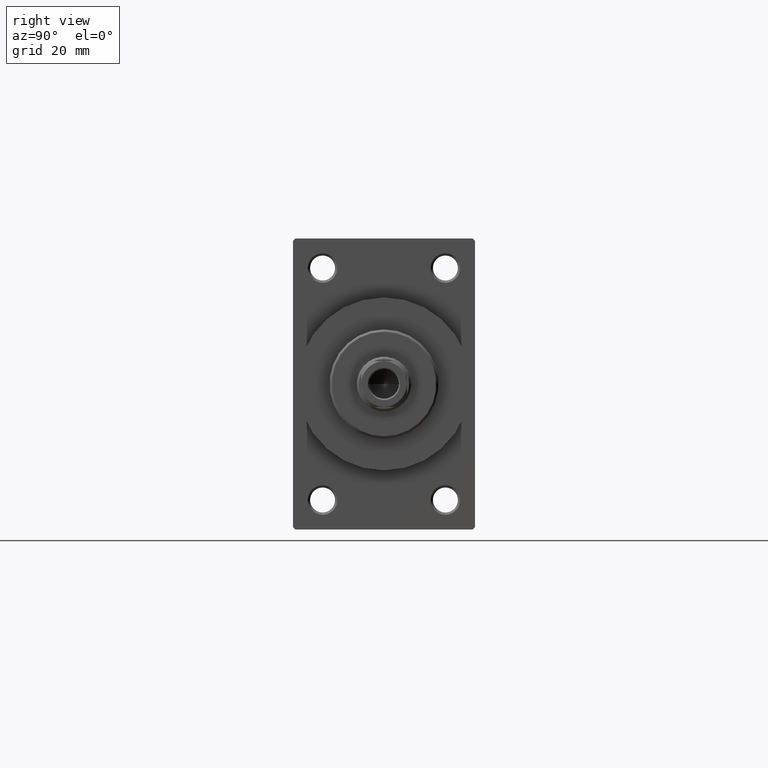
[diagram: clean part render]
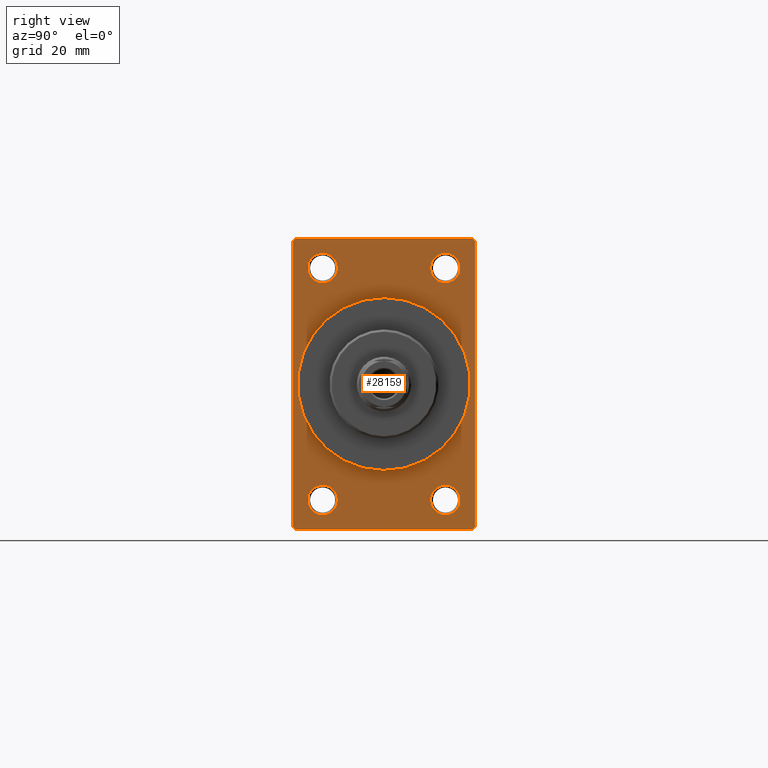
[diagram: same view with one face highlighted and labeled with its STEP entity id]
A machine part, right view. The second image highlights one B-rep face of the part: STEP entity #28159.
In plain terms, the highlighted planar face has unit normal (-1, 0, 0).
Its self-contained STEP definition (entity closure, byte-faithful):
#258 = AXIS2_PLACEMENT_3D ( 'NONE', #43121, #4071, #29058 ) ;
#797 = VECTOR ( 'NONE', #36670, 1000.000000000000000 ) ;
#865 = LINE ( 'NONE', #44678, #2356 ) ;
#932 = VECTOR ( 'NONE', #1781, 1000.000000000000000 ) ;
#965 = CARTESIAN_POINT ( 'NONE',  ( 109.0000000000000142, -19.49999999999998579, 31.99999999999999289 ) ) ;
#1007 = CIRCLE ( 'NONE', #258, 3.250000000000002665 ) ;
#1215 = VERTEX_POINT ( 'NONE', #41802 ) ;
#1407 = EDGE_CURVE ( 'NONE', #43230, #31814, #12410, .T. ) ;
#1618 = CARTESIAN_POINT ( 'NONE',  ( 109.0000000000000142, 0.000000000000000000, 0.000000000000000000 ) ) ;
#1650 = DIRECTION ( 'NONE',  ( -1.000000000000000000, -0.000000000000000000, -0.000000000000000000 ) ) ;
#1781 = DIRECTION ( 'NONE',  ( 0.000000000000000000, -1.000000000000000000, 0.000000000000000000 ) ) ;
#2067 = ORIENTED_EDGE ( 'NONE', *, *, #25658, .T. ) ;
#2356 = VECTOR ( 'NONE', #3747, 1000.000000000000000 ) ;
#2498 = DIRECTION ( 'NONE',  ( 0.000000000000000000, 0.000000000000000000, 1.000000000000000000 ) ) ;
#2551 = FACE_BOUND ( 'NONE', #45333, .T. ) ;
#2731 = CARTESIAN_POINT ( 'NONE',  ( 109.0000000000000142, 2.326828918379970970E-15, -19.00000000000000000 ) ) ;
#2789 = FACE_BOUND ( 'NONE', #25718, .T. ) ;
#3309 = ORIENTED_EDGE ( 'NONE', *, *, #42561, .T. ) ;
#3577 = VERTEX_POINT ( 'NONE', #965 ) ;
#3670 = EDGE_LOOP ( 'NONE', ( #22754, #31480 ) ) ;
#3747 = DIRECTION ( 'NONE',  ( 0.000000000000000000, -1.000000000000000000, -1.734723475976807094E-16 ) ) ;
#4071 = DIRECTION ( 'NONE',  ( -1.000000000000000000, -0.000000000000000000, -0.000000000000000000 ) ) ;
#4463 = CARTESIAN_POINT ( 'NONE',  ( 109.0000000000000142, 13.49999999999999822, -25.50000000000000000 ) ) ;
#4606 = CIRCLE ( 'NONE', #35766, 19.00000000000000000 ) ;
#4645 = EDGE_CURVE ( 'NONE', #14798, #29362, #1007, .T. ) ;
#4802 = VERTEX_POINT ( 'NONE', #42122 ) ;
#4991 = CARTESIAN_POINT ( 'NONE',  ( 109.0000000000000142, -13.50000000000000533, -25.49999999999999645 ) ) ;
#5524 = LINE ( 'NONE', #16232, #13686 ) ;
#5813 = DIRECTION ( 'NONE',  ( 0.000000000000000000, 0.000000000000000000, 1.000000000000000000 ) ) ;
#5872 = ORIENTED_EDGE ( 'NONE', *, *, #33255, .T. ) ;
#5947 = CARTESIAN_POINT ( 'NONE',  ( 109.0000000000000142, -13.50000000000000178, 28.75000000000000355 ) ) ;
#6063 = CARTESIAN_POINT ( 'NONE',  ( 109.0000000000000142, 13.49999999999999822, 25.50000000000000355 ) ) ;
#6375 = CARTESIAN_POINT ( 'NONE',  ( 109.0000000000000142, 0.000000000000000000, 19.00000000000000000 ) ) ;
#6588 = FACE_BOUND ( 'NONE', #16532, .T. ) ;
#6835 = AXIS2_PLACEMENT_3D ( 'NONE', #17305, #32292, #38736 ) ;
#6840 = VERTEX_POINT ( 'NONE', #39706 ) ;
#7007 = CARTESIAN_POINT ( 'NONE',  ( 109.0000000000000142, 19.49999999999998579, 32.00000000000000000 ) ) ;
#7472 = CARTESIAN_POINT ( 'NONE',  ( 109.0000000000000142, 0.000000000000000000, 0.000000000000000000 ) ) ;
#7721 = CARTESIAN_POINT ( 'NONE',  ( 109.0000000000000142, 13.49999999999999822, 22.25000000000004263 ) ) ;
#8200 = CARTESIAN_POINT ( 'NONE',  ( 109.0000000000000142, 19.49999999999998579, 32.00000000000000000 ) ) ;
#8448 = CARTESIAN_POINT ( 'NONE',  ( 109.0000000000000142, 20.00000000000000000, -32.00000000000000000 ) ) ;
#8827 = CIRCLE ( 'NONE', #30869, 3.250000000000002665 ) ;
#9023 = DIRECTION ( 'NONE',  ( 0.000000000000000000, 0.000000000000000000, 1.000000000000000000 ) ) ;
#9216 = CARTESIAN_POINT ( 'NONE',  ( 109.0000000000000142, -20.00000000000000000, 31.99999999999999289 ) ) ;
#9539 = CARTESIAN_POINT ( 'NONE',  ( 109.0000000000000142, 13.49999999999999822, -28.75000000000000000 ) ) ;
#9599 = AXIS2_PLACEMENT_3D ( 'NONE', #4463, #33980, #40636 ) ;
#9684 = DIRECTION ( 'NONE',  ( 0.000000000000000000, 0.000000000000000000, -1.000000000000000000 ) ) ;
#9686 = FACE_BOUND ( 'NONE', #15568, .T. ) ;
#10519 = DIRECTION ( 'NONE',  ( 0.000000000000000000, 0.000000000000000000, 1.000000000000000000 ) ) ;
#10718 = CARTESIAN_POINT ( 'NONE',  ( 109.0000000000000142, 20.00000000000000000, -31.49999999999998579 ) ) ;
#10835 = ORIENTED_EDGE ( 'NONE', *, *, #29262, .T. ) ;
#12084 = DIRECTION ( 'NONE',  ( 1.000000000000000000, 0.000000000000000000, 0.000000000000000000 ) ) ;
#12245 = ORIENTED_EDGE ( 'NONE', *, *, #13261, .T. ) ;
#12410 = CIRCLE ( 'NONE', #42048, 3.249999999999961364 ) ;
#13261 = EDGE_CURVE ( 'NONE', #16991, #4802, #34328, .T. ) ;
#13686 = VECTOR ( 'NONE', #30757, 1000.000000000000114 ) ;
#14498 = EDGE_CURVE ( 'NONE', #6840, #1215, #24798, .T. ) ;
#14798 = VERTEX_POINT ( 'NONE', #18920 ) ;
#14880 = VERTEX_POINT ( 'NONE', #8200 ) ;
#15198 = DIRECTION ( 'NONE',  ( -0.000000000000000000, -0.7071067811865474617, -0.7071067811865474617 ) ) ;
#15205 = ORIENTED_EDGE ( 'NONE', *, *, #17951, .T. ) ;
#15568 = EDGE_LOOP ( 'NONE', ( #35583, #17913 ) ) ;
#15593 = EDGE_CURVE ( 'NONE', #1215, #6840, #30865, .T. ) ;
#15691 = VERTEX_POINT ( 'NONE', #6375 ) ;
#15868 = EDGE_CURVE ( 'NONE', #38823, #23902, #42287, .T. ) ;
#16232 = CARTESIAN_POINT ( 'NONE',  ( 109.0000000000000142, 20.00000000000000000, -31.49999999999998579 ) ) ;
#16532 = EDGE_LOOP ( 'NONE', ( #15205, #17825 ) ) ;
#16991 = VERTEX_POINT ( 'NONE', #38940 ) ;
#17061 = FACE_BOUND ( 'NONE', #3670, .T. ) ;
#17305 = CARTESIAN_POINT ( 'NONE',  ( 109.0000000000000142, 0.000000000000000000, 0.000000000000000000 ) ) ;
#17487 = DIRECTION ( 'NONE',  ( -1.000000000000000000, -0.000000000000000000, -0.000000000000000000 ) ) ;
#17825 = ORIENTED_EDGE ( 'NONE', *, *, #1407, .T. ) ;
#17910 = ORIENTED_EDGE ( 'NONE', *, *, #35933, .F. ) ;
#17913 = ORIENTED_EDGE ( 'NONE', *, *, #44654, .T. ) ;
#17951 = EDGE_CURVE ( 'NONE', #31814, #43230, #23375, .T. ) ;
#18011 = VERTEX_POINT ( 'NONE', #2731 ) ;
#18223 = ORIENTED_EDGE ( 'NONE', *, *, #15593, .T. ) ;
#18863 = DIRECTION ( 'NONE',  ( 0.000000000000000000, 0.7071067811865426878, -0.7071067811865524577 ) ) ;
#18920 = CARTESIAN_POINT ( 'NONE',  ( 109.0000000000000142, -13.50000000000000178, 22.25000000000000000 ) ) ;
#19639 = VERTEX_POINT ( 'NONE', #32122 ) ;
#20542 = ORIENTED_EDGE ( 'NONE', *, *, #30726, .T. ) ;
#20567 = DIRECTION ( 'NONE',  ( -1.000000000000000000, -0.000000000000000000, -0.000000000000000000 ) ) ;
#21278 = VERTEX_POINT ( 'NONE', #27151 ) ;
#21537 = DIRECTION ( 'NONE',  ( 0.000000000000000000, -0.7071067811865474617, 0.7071067811865474617 ) ) ;
#21743 = AXIS2_PLACEMENT_3D ( 'NONE', #44992, #40708, #33558 ) ;
#21933 = CARTESIAN_POINT ( 'NONE',  ( 109.0000000000000142, 20.00000000000000000, 32.00000000000000000 ) ) ;
#21961 = CARTESIAN_POINT ( 'NONE',  ( 109.0000000000000142, -13.50000000000000178, 25.50000000000000355 ) ) ;
#22036 = CARTESIAN_POINT ( 'NONE',  ( 109.0000000000000142, 13.49999999999999822, -22.24999999999999645 ) ) ;
#22261 = VECTOR ( 'NONE', #9684, 1000.000000000000000 ) ;
#22360 = LINE ( 'NONE', #33532, #45658 ) ;
#22621 = AXIS2_PLACEMENT_3D ( 'NONE', #6063, #17487, #2498 ) ;
#22754 = ORIENTED_EDGE ( 'NONE', *, *, #28479, .F. ) ;
#23375 = CIRCLE ( 'NONE', #22621, 3.249999999999961364 ) ;
#23442 = CARTESIAN_POINT ( 'NONE',  ( 109.0000000000000142, 13.49999999999999822, 25.50000000000000355 ) ) ;
#23902 = VERTEX_POINT ( 'NONE', #9539 ) ;
#23958 = VECTOR ( 'NONE', #21537, 1000.000000000000114 ) ;
#24798 = CIRCLE ( 'NONE', #21743, 3.250000000000002665 ) ;
#25340 = DIRECTION ( 'NONE',  ( 0.000000000000000000, 0.000000000000000000, -1.000000000000000000 ) ) ;
#25457 = ORIENTED_EDGE ( 'NONE', *, *, #15868, .T. ) ;
#25658 = EDGE_CURVE ( 'NONE', #19639, #36090, #5524, .T. ) ;
#25709 = ORIENTED_EDGE ( 'NONE', *, *, #25862, .F. ) ;
#25718 = EDGE_LOOP ( 'NONE', ( #38680, #25457 ) ) ;
#25862 = EDGE_CURVE ( 'NONE', #29168, #36090, #36907, .T. ) ;
#27151 = CARTESIAN_POINT ( 'NONE',  ( 109.0000000000000142, -20.00000000000000000, 31.49999999999997868 ) ) ;
#27856 = AXIS2_PLACEMENT_3D ( 'NONE', #4991, #1650, #9023 ) ;
#28159 = ADVANCED_FACE ( 'NONE', ( #9686, #2551, #2789, #6588, #17061, #46119 ), #45880, .F. ) ;
#28219 = DIRECTION ( 'NONE',  ( 0.000000000000000000, 0.000000000000000000, 1.000000000000000000 ) ) ;
#28479 = EDGE_CURVE ( 'NONE', #15691, #18011, #4606, .T. ) ;
#29058 = DIRECTION ( 'NONE',  ( 0.000000000000000000, 0.000000000000000000, 1.000000000000000000 ) ) ;
#29131 = DIRECTION ( 'NONE',  ( 1.000000000000000000, 0.000000000000000000, 0.000000000000000000 ) ) ;
#29168 = VERTEX_POINT ( 'NONE', #32116 ) ;
#29262 = EDGE_CURVE ( 'NONE', #3577, #21278, #22360, .T. ) ;
#29362 = VERTEX_POINT ( 'NONE', #5947 ) ;
#29807 = CARTESIAN_POINT ( 'NONE',  ( 109.0000000000000142, -19.49999999999998579, -32.00000000000000000 ) ) ;
#30613 = AXIS2_PLACEMENT_3D ( 'NONE', #1618, #12084, #44242 ) ;
#30726 = EDGE_CURVE ( 'NONE', #14880, #3577, #865, .T. ) ;
#30757 = DIRECTION ( 'NONE',  ( -0.000000000000000000, 0.7071067811865474617, 0.7071067811865474617 ) ) ;
#30865 = CIRCLE ( 'NONE', #27856, 3.250000000000002665 ) ;
#30869 = AXIS2_PLACEMENT_3D ( 'NONE', #21961, #43143, #10519 ) ;
#31480 = ORIENTED_EDGE ( 'NONE', *, *, #33144, .F. ) ;
#31814 = VERTEX_POINT ( 'NONE', #7721 ) ;
#32116 = CARTESIAN_POINT ( 'NONE',  ( 109.0000000000000142, 20.00000000000000000, 31.49999999999998579 ) ) ;
#32122 = CARTESIAN_POINT ( 'NONE',  ( 109.0000000000000142, 19.49999999999998579, -32.00000000000000000 ) ) ;
#32247 = LINE ( 'NONE', #7007, #23958 ) ;
#32292 = DIRECTION ( 'NONE',  ( -1.000000000000000000, 0.000000000000000000, -0.000000000000000000 ) ) ;
#33144 = EDGE_CURVE ( 'NONE', #18011, #15691, #38966, .T. ) ;
#33255 = EDGE_CURVE ( 'NONE', #21278, #16991, #45649, .T. ) ;
#33532 = CARTESIAN_POINT ( 'NONE',  ( 109.0000000000000142, -20.00000000000000000, 31.49999999999997868 ) ) ;
#33558 = DIRECTION ( 'NONE',  ( 0.000000000000000000, 0.000000000000000000, 1.000000000000000000 ) ) ;
#33725 = ORIENTED_EDGE ( 'NONE', *, *, #14498, .T. ) ;
#33980 = DIRECTION ( 'NONE',  ( -1.000000000000000000, -0.000000000000000000, -0.000000000000000000 ) ) ;
#34328 = LINE ( 'NONE', #29807, #45295 ) ;
#34506 = DIRECTION ( 'NONE',  ( -1.000000000000000000, -0.000000000000000000, -0.000000000000000000 ) ) ;
#35583 = ORIENTED_EDGE ( 'NONE', *, *, #4645, .T. ) ;
#35606 = CARTESIAN_POINT ( 'NONE',  ( 109.0000000000000142, 13.49999999999999822, -25.50000000000000000 ) ) ;
#35766 = AXIS2_PLACEMENT_3D ( 'NONE', #7472, #29131, #25340 ) ;
#35933 = EDGE_CURVE ( 'NONE', #19639, #4802, #41299, .T. ) ;
#36090 = VERTEX_POINT ( 'NONE', #10718 ) ;
#36670 = DIRECTION ( 'NONE',  ( 0.000000000000000000, 0.000000000000000000, -1.000000000000000000 ) ) ;
#36907 = LINE ( 'NONE', #21933, #797 ) ;
#37292 = CARTESIAN_POINT ( 'NONE',  ( 109.0000000000000142, 13.49999999999999822, 28.74999999999996803 ) ) ;
#38680 = ORIENTED_EDGE ( 'NONE', *, *, #38729, .T. ) ;
#38729 = EDGE_CURVE ( 'NONE', #23902, #38823, #46602, .T. ) ;
#38736 = DIRECTION ( 'NONE',  ( -0.000000000000000000, 0.000000000000000000, 1.000000000000000000 ) ) ;
#38823 = VERTEX_POINT ( 'NONE', #22036 ) ;
#38940 = CARTESIAN_POINT ( 'NONE',  ( 109.0000000000000142, -20.00000000000000000, -31.49999999999997868 ) ) ;
#38966 = CIRCLE ( 'NONE', #30613, 19.00000000000000000 ) ;
#39706 = CARTESIAN_POINT ( 'NONE',  ( 109.0000000000000142, -13.50000000000000533, -22.24999999999999289 ) ) ;
#40636 = DIRECTION ( 'NONE',  ( 0.000000000000000000, 0.000000000000000000, 1.000000000000000000 ) ) ;
#40708 = DIRECTION ( 'NONE',  ( -1.000000000000000000, -0.000000000000000000, -0.000000000000000000 ) ) ;
#41048 = EDGE_LOOP ( 'NONE', ( #5872, #12245, #17910, #2067, #25709, #3309, #20542, #10835 ) ) ;
#41299 = LINE ( 'NONE', #8448, #932 ) ;
#41802 = CARTESIAN_POINT ( 'NONE',  ( 109.0000000000000142, -13.50000000000000533, -28.74999999999999645 ) ) ;
#42048 = AXIS2_PLACEMENT_3D ( 'NONE', #23442, #20567, #5813 ) ;
#42122 = CARTESIAN_POINT ( 'NONE',  ( 109.0000000000000142, -19.49999999999998579, -32.00000000000000000 ) ) ;
#42287 = CIRCLE ( 'NONE', #9599, 3.250000000000002665 ) ;
#42561 = EDGE_CURVE ( 'NONE', #29168, #14880, #32247, .T. ) ;
#42799 = AXIS2_PLACEMENT_3D ( 'NONE', #35606, #34506, #28219 ) ;
#43121 = CARTESIAN_POINT ( 'NONE',  ( 109.0000000000000142, -13.50000000000000178, 25.50000000000000355 ) ) ;
#43143 = DIRECTION ( 'NONE',  ( -1.000000000000000000, -0.000000000000000000, -0.000000000000000000 ) ) ;
#43230 = VERTEX_POINT ( 'NONE', #37292 ) ;
#44242 = DIRECTION ( 'NONE',  ( 0.000000000000000000, 0.000000000000000000, -1.000000000000000000 ) ) ;
#44654 = EDGE_CURVE ( 'NONE', #29362, #14798, #8827, .T. ) ;
#44678 = CARTESIAN_POINT ( 'NONE',  ( 109.0000000000000142, 20.00000000000000000, 32.00000000000000000 ) ) ;
#44992 = CARTESIAN_POINT ( 'NONE',  ( 109.0000000000000142, -13.50000000000000533, -25.49999999999999645 ) ) ;
#45295 = VECTOR ( 'NONE', #18863, 1000.000000000000000 ) ;
#45333 = EDGE_LOOP ( 'NONE', ( #18223, #33725 ) ) ;
#45649 = LINE ( 'NONE', #9216, #22261 ) ;
#45658 = VECTOR ( 'NONE', #15198, 1000.000000000000114 ) ;
#45880 = PLANE ( 'NONE',  #6835 ) ;
#46119 = FACE_OUTER_BOUND ( 'NONE', #41048, .T. ) ;
#46602 = CIRCLE ( 'NONE', #42799, 3.250000000000002665 ) ;